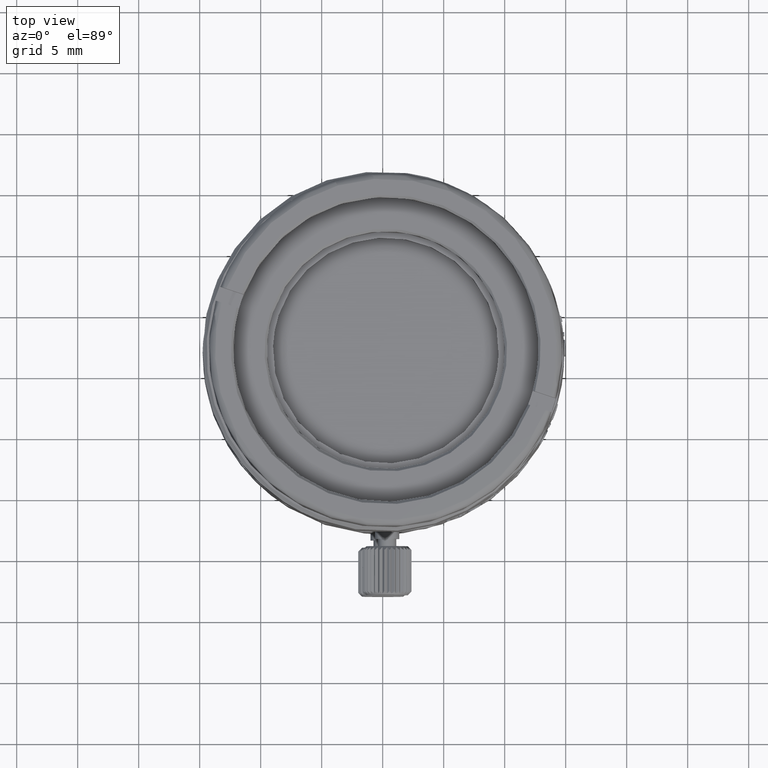
[diagram: clean part render]
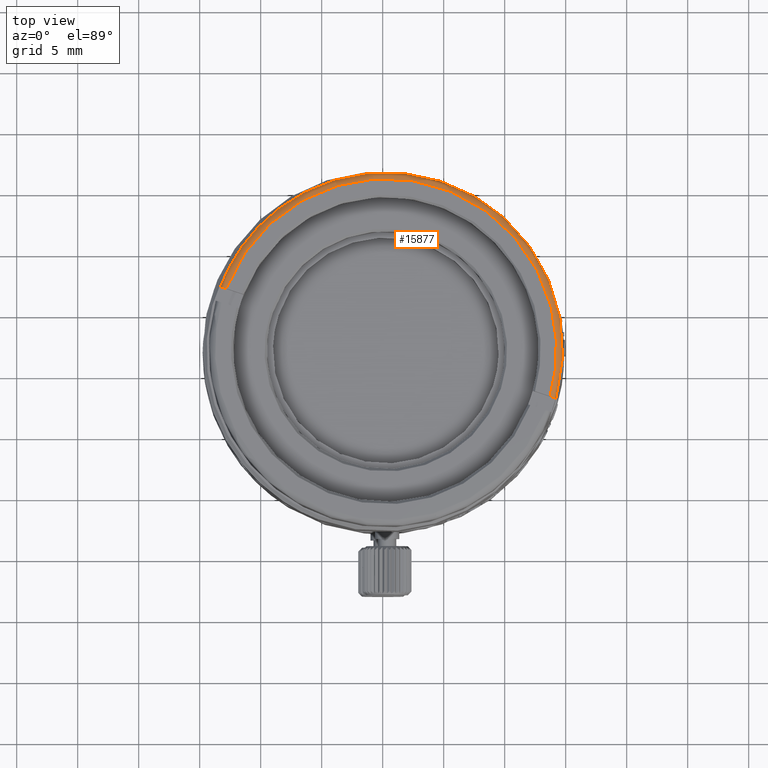
[diagram: same view with one face highlighted and labeled with its STEP entity id]
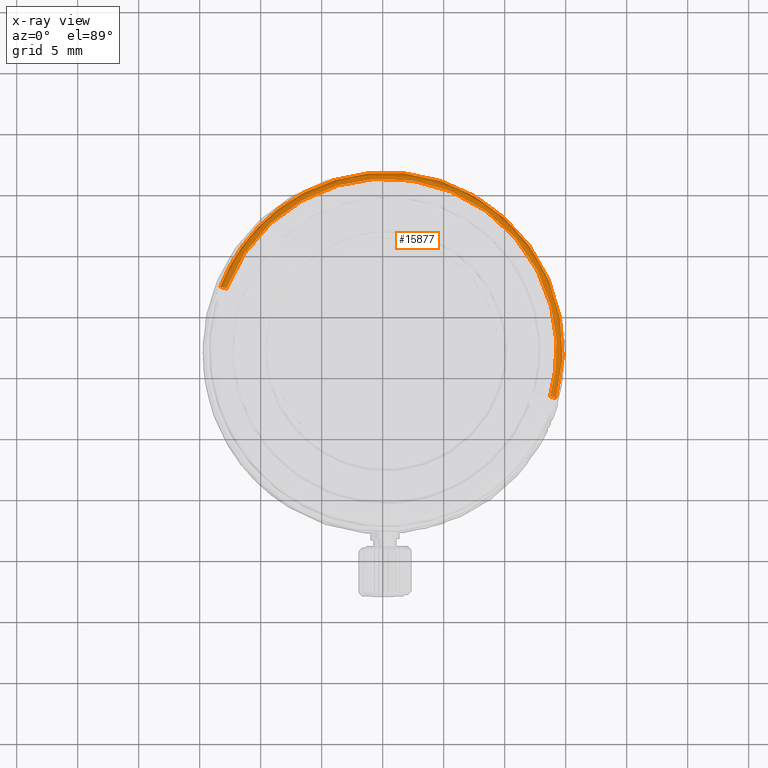
[diagram: x-ray of the same camera — body ghosted, the highlighted face saturated]
A machine part, top view. The second image highlights one B-rep face of the part: STEP entity #15877.
The next image is the same camera in x-ray: the body ghosted, the highlighted face saturated — about 0% of this face is hidden behind the body in this view.
In plain terms, the highlighted face is a freeform B-spline surface patch.
Its self-contained STEP definition (entity closure, byte-faithful):
#107 = B_SPLINE_CURVE_WITH_KNOTS ( 'NONE', 3,
 ( #26075, #38065, #32463, #32652, #7895, #7700, #38455, #29071, #13704, #34869, #11089, #38261, #20101, #7501 ),
 .UNSPECIFIED., .F., .F.,
 ( 4, 2, 2, 2, 2, 2, 4 ),
 ( 0.0000000000000000000, 0.1250000000000000000, 0.2500000000000000000, 0.3750000000000000000, 0.5000000000000000000, 0.7500000000000000000, 1.000000000000000000 ),
 .UNSPECIFIED. ) ;
#1293 = CARTESIAN_POINT ( 'NONE',  ( -13.39253484400000005, -8.399970837999999773, 23.23346790200000100 ) ) ;
#1362 = ORIENTED_EDGE ( 'NONE', *, *, #38321, .T. ) ;
#1625 = EDGE_CURVE ( 'NONE', #20588, #24398, #33656, .T. ) ;
#1680 = CARTESIAN_POINT ( 'NONE',  ( 14.11418342200000176, -17.54571186400000116, 23.23346790200000100 ) ) ;
#2509 = CARTESIAN_POINT ( 'NONE',  ( 14.19235507976254063, -17.29135141184179858, 23.28338461005554905 ) ) ;
#2704 = CARTESIAN_POINT ( 'NONE',  ( 13.84134122936185918, -17.17464240823117194, 23.77053109319999891 ) ) ;
#4370 = CARTESIAN_POINT ( 'NONE',  ( 13.71747242668151934, -17.13345712590439973, 23.78338461013249372 ) ) ;
#5060 = CARTESIAN_POINT ( 'NONE',  ( -3.984618222999998238, 17.24356972600000049, 23.81499482200001694 ) ) ;
#5417 = ORIENTED_EDGE ( 'NONE', *, *, #19040, .F. ) ;
#5697 = CARTESIAN_POINT ( 'NONE',  ( 14.07444011033901887, -17.25214572870076424, 23.61446243440001425 ) ) ;
#5887 = CARTESIAN_POINT ( 'NONE',  ( 14.19235507900000215, -17.29135141500000827, 23.31592256960001208 ) ) ;
#6129 =( BOUNDED_CURVE ( )  B_SPLINE_CURVE ( 3, ( #10777, #34758, #13789, #4370 ),
 .UNSPECIFIED., .F., .F. ) 
 B_SPLINE_CURVE_WITH_KNOTS ( ( 4, 4 ),
 ( 0.0000000000000000000, 3.055852107077114965 ),
 .UNSPECIFIED. ) 
 CURVE ( )  GEOMETRIC_REPRESENTATION_ITEM ( )  RATIONAL_B_SPLINE_CURVE ( ( 0.9383972337661936614, 0.3396104272766295451, 0.3396104272766297116, 0.9383972337661944385 ) ) 
 REPRESENTATION_ITEM ( '' )  );
#7501 = CARTESIAN_POINT ( 'NONE',  ( -13.30283566315441846, -8.149443186245331816, 23.28338461005554905 ) ) ;
#7700 = CARTESIAN_POINT ( 'NONE',  ( -13.03873253932470178, -8.237255145839194270, 23.73232144480000017 ) ) ;
#7895 = CARTESIAN_POINT ( 'NONE',  ( -12.98136419442067080, -8.256329614156109997, 23.75711832560000403 ) ) ;
#8069 = CARTESIAN_POINT ( 'NONE',  ( -4.056299747999996264, 17.75975778500000146, 23.57341149299999827 ) ) ;
#9151 = VERTEX_POINT ( 'NONE', #34090 ) ;
#9246 = EDGE_LOOP ( 'NONE', ( #39242, #17471, #1362, #5417 ) ) ;
#10478 = CARTESIAN_POINT ( 'NONE',  ( 13.59088440799999908, -17.38500880300000162, 23.78088669299999935 ) ) ;
#10777 = CARTESIAN_POINT ( 'NONE',  ( -12.82795301243490016, -8.307337479751739195, 23.78338461013249727 ) ) ;
#10873 = CARTESIAN_POINT ( 'NONE',  ( 22.24905300699999700, 8.943946725000003539, 23.23346790200000811 ) ) ;
#11089 = CARTESIAN_POINT ( 'NONE',  ( -13.24169227200959220, -8.169772826152550849, 23.53630244679998995 ) ) ;
#11742 =( BOUNDED_CURVE ( )  B_SPLINE_CURVE ( 3, ( #15383, #21597, #36969, #30961 ),
 .UNSPECIFIED., .F., .F. ) 
 B_SPLINE_CURVE_WITH_KNOTS ( ( 4, 4 ),
 ( 6.003584016374669652, 9.062394413848078756 ),
 .UNSPECIFIED. ) 
 CURVE ( )  GEOMETRIC_REPRESENTATION_ITEM ( )  RATIONAL_B_SPLINE_CURVE ( ( 0.9397289228042472464, 0.3391665309306118314, 0.3391665309306117204, 0.9397289228042471354 ) ) 
 REPRESENTATION_ITEM ( '' )  );
#13704 = CARTESIAN_POINT ( 'NONE',  ( -13.14223674355750049, -8.202840911515217215, 23.65938426000000305 ) ) ;
#13789 = CARTESIAN_POINT ( 'NONE',  ( 20.79147829226517885, 7.642212145812234958, 23.78338461039749419 ) ) ;
#14391 = CARTESIAN_POINT ( 'NONE',  ( 14.19235507976254063, -17.29135141184179858, 23.28338461005554905 ) ) ;
#15090 = CARTESIAN_POINT ( 'NONE',  ( 14.14378505425290733, -17.27520231047658683, 23.50546003080000546 ) ) ;
#15383 = CARTESIAN_POINT ( 'NONE',  ( 14.19235507976254063, -17.29135141184179858, 23.28338461005554905 ) ) ;
#15877 = ADVANCED_FACE ( 'NONE', ( #23465 ), #35784, .T. ) ;
#16494 = CARTESIAN_POINT ( 'NONE',  ( -4.046179336000001570, 17.68687937600001092, 23.23346790200000811 ) ) ;
#16889 = CARTESIAN_POINT ( 'NONE',  ( -12.87719324499999907, -8.584606613000000053, 23.78088669299999935 ) ) ;
#17080 = CARTESIAN_POINT ( 'NONE',  ( -13.19721710399999282, -8.469948969999997246, 23.81499482200002049 ) ) ;
#17471 = ORIENTED_EDGE ( 'NONE', *, *, #1625, .F. ) ;
#18770 = CARTESIAN_POINT ( 'NONE',  ( 13.71747242668151934, -17.13345712590439973, 23.78338461013249727 ) ) ;
#19040 = EDGE_CURVE ( 'NONE', #9151, #30639, #107, .T. ) ;
#19687 = CARTESIAN_POINT ( 'NONE',  ( -3.883751681000003675, 16.51721653099999543, 23.78088669300001001 ) ) ;
#19889 = CARTESIAN_POINT ( 'NONE',  ( 21.41858518200001527, 8.104412862999998524, 23.78088669300001001 ) ) ;
#20101 = CARTESIAN_POINT ( 'NONE',  ( -13.30283566399999984, -8.149443188000001115, 23.34999111039999775 ) ) ;
#20333 = CARTESIAN_POINT ( 'NONE',  ( 14.01033531049660219, -17.23083144857638160, 23.68250904999999662 ) ) ;
#20473 = CARTESIAN_POINT ( 'NONE',  ( -13.42464433299999982, -8.388466700999995140, 23.57341149300002670 ) ) ;
#20524 = CARTESIAN_POINT ( 'NONE',  ( 13.78069120059776864, -17.15447680899668015, 23.78338460999999171 ) ) ;
#20588 = VERTEX_POINT ( 'NONE', #14391 ) ;
#21597 = CARTESIAN_POINT ( 'NONE',  ( 21.57751560745467856, 8.429918951598107668, 23.28338461056659625 ) ) ;
#23465 = FACE_OUTER_BOUND ( 'NONE', #9246, .T. ) ;
#23515 = CARTESIAN_POINT ( 'NONE',  ( 13.95750380059731910, -17.21326543785401597, 23.71911702599999572 ) ) ;
#24398 = VERTEX_POINT ( 'NONE', #18770 ) ;
#26075 = CARTESIAN_POINT ( 'NONE',  ( -12.82795301243490016, -8.307337479751739195, 23.78338461013249727 ) ) ;
#27269 = CARTESIAN_POINT ( 'NONE',  ( 14.09518062676367123, -17.25904176734507445, 23.58802240150000529 ) ) ;
#29054 = CARTESIAN_POINT ( 'NONE',  ( 22.30079712699999561, 8.996255723999990295, 23.57341149299999827 ) ) ;
#29071 = CARTESIAN_POINT ( 'NONE',  ( -13.11713474826097503, -8.211187103387686648, 23.68119386060000764 ) ) ;
#29885 = CARTESIAN_POINT ( 'NONE',  ( 13.71747242668151934, -17.13345712590439973, 23.78338461013249727 ) ) ;
#30266 = CARTESIAN_POINT ( 'NONE',  ( 14.16736452284031600, -17.28304227565691065, 23.44503723000000761 ) ) ;
#30639 = VERTEX_POINT ( 'NONE', #34097 ) ;
#30961 = CARTESIAN_POINT ( 'NONE',  ( -13.30283566315441846, -8.149443186245331816, 23.28338461005554905 ) ) ;
#32253 = CARTESIAN_POINT ( 'NONE',  ( 21.93430042499998933, 8.625758056999993428, 23.81499482200001694 ) ) ;
#32463 = CARTESIAN_POINT ( 'NONE',  ( -12.88944928949675095, -8.286890508753234741, 23.78016254960000708 ) ) ;
#32652 = CARTESIAN_POINT ( 'NONE',  ( -12.95014774055853124, -8.266708809532163471, 23.76727430799999397 ) ) ;
#33068 = CARTESIAN_POINT ( 'NONE',  ( 14.17702995797775500, -17.28625594752780614, 23.41213489160000094 ) ) ;
#33656 = B_SPLINE_CURVE_WITH_KNOTS ( 'NONE', 3,
 ( #2509, #5887, #35688, #33068, #30266, #15090, #36074, #27269, #5697, #20333, #23515, #2704, #20524, #29885 ),
 .UNSPECIFIED., .F., .F.,
 ( 4, 2, 2, 2, 2, 2, 4 ),
 ( 0.0000000000000000000, 0.1249999999999988898, 0.2499999999999977796, 0.3749999999999966693, 0.4999999999999955591, 0.7499999999999977796, 1.000000000000000000 ),
 .UNSPECIFIED. ) ;
#34090 = CARTESIAN_POINT ( 'NONE',  ( -12.82795301243490016, -8.307337479751739195, 23.78338461013249727 ) ) ;
#34097 = CARTESIAN_POINT ( 'NONE',  ( -13.30283566315441846, -8.149443186245331816, 23.28338461005554905 ) ) ;
#34758 = CARTESIAN_POINT ( 'NONE',  ( -3.658255682192031344, 15.77153287909748158, 23.78338461039748353 ) ) ;
#34869 = CARTESIAN_POINT ( 'NONE',  ( -13.20690449701693048, -8.181339454282115398, 23.59190691479999913 ) ) ;
#35247 = CARTESIAN_POINT ( 'NONE',  ( 14.14678871499998891, -17.55572482100001608, 23.57341149300002670 ) ) ;
#35688 = CARTESIAN_POINT ( 'NONE',  ( 14.18929005479555450, -17.29033232150555932, 23.34818021800000665 ) ) ;
#35784 =( BOUNDED_SURFACE ( )  B_SPLINE_SURFACE ( 3, 3, ( 
 ( #10478, #19889, #19687, #16889 ),
 ( #38440, #32253, #5060, #17080 ),
 ( #35247, #29054, #8069, #20473 ),
 ( #1680, #10873, #16494, #1293 ) ),
 .UNSPECIFIED., .F., .F., .F. ) 
 B_SPLINE_SURFACE_WITH_KNOTS ( ( 4, 4 ),
 ( 4, 4 ),
 ( 0.0000000000000000000, 1.000000000000000000 ),
 ( 0.0000000000000000000, 1.000000000000000000 ),
 .UNSPECIFIED. ) 
 GEOMETRIC_REPRESENTATION_ITEM ( )  RATIONAL_B_SPLINE_SURFACE ( (
 ( 1.000000000000000000, 0.3486908185018430251, 0.3486908185018430251, 1.000000000000000000),
 ( 0.7553208711179699719, 0.2633734527816500304, 0.2633734527816500304, 0.7553208711179699719),
 ( 0.7553208711179699719, 0.2633734527816500304, 0.2633734527816500304, 0.7553208711179699719),
 ( 1.000000000000000000, 0.3486908185018430251, 0.3486908185018430251, 1.000000000000000000) ) ) 
 REPRESENTATION_ITEM ( '' )  SURFACE ( )  );
#36074 = CARTESIAN_POINT ( 'NONE',  ( 14.12934827503758406, -17.27040220881422883, 23.53405706510000428 ) ) ;
#36969 = CARTESIAN_POINT ( 'NONE',  ( -3.816131879958434947, 16.87308259611225836, 23.28338461056659980 ) ) ;
#38065 = CARTESIAN_POINT ( 'NONE',  ( -12.85883412238330337, -8.297069781592622206, 23.78338460999999526 ) ) ;
#38261 = CARTESIAN_POINT ( 'NONE',  ( -13.29060698560191689, -8.153509115630509285, 23.41389597799999933 ) ) ;
#38321 = EDGE_CURVE ( 'NONE', #20588, #30639, #11742, .T. ) ;
#38440 = CARTESIAN_POINT ( 'NONE',  ( 13.91584977099999598, -17.48480438300000017, 23.81499482200002049 ) ) ;
#38455 = CARTESIAN_POINT ( 'NONE',  ( -13.06588665009276262, -8.228226643685509600, 23.71713655179999947 ) ) ;
#38690 = EDGE_CURVE ( 'NONE', #9151, #24398, #6129, .T. ) ;
#39242 = ORIENTED_EDGE ( 'NONE', *, *, #38690, .T. ) ;